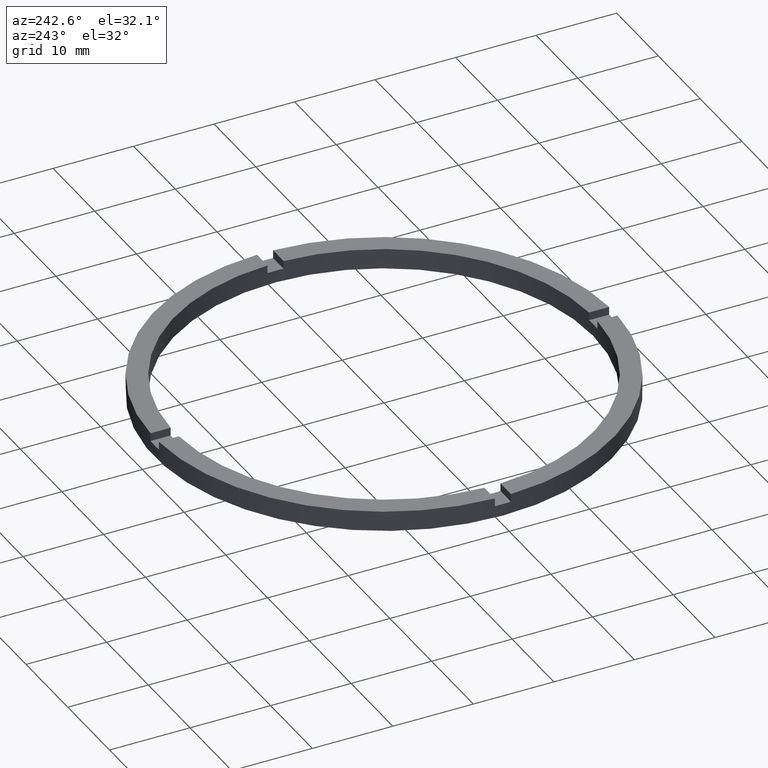
[diagram: clean part render]
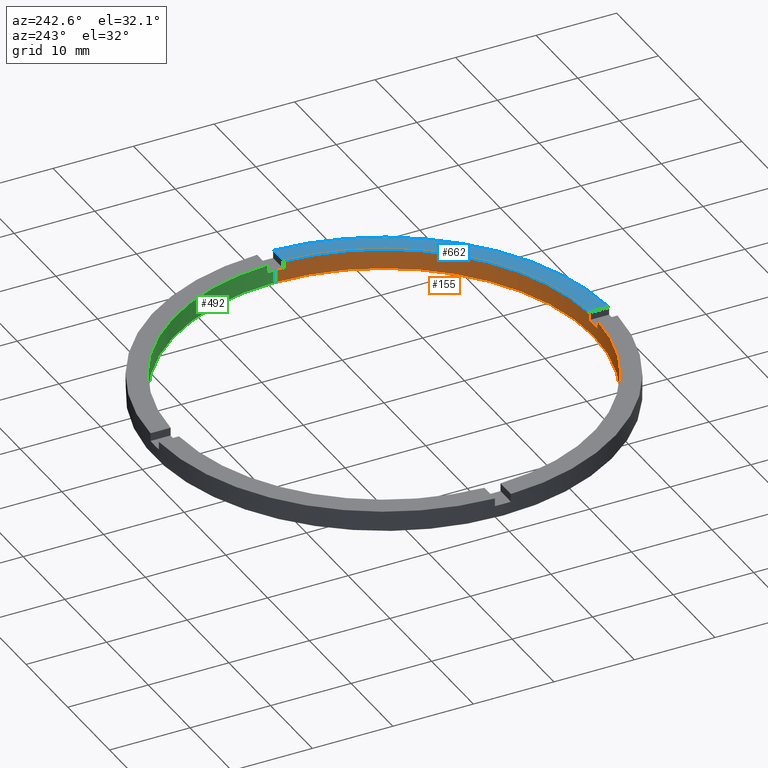
[diagram: same view with three faces highlighted in distinct colors, each labeled with its STEP entity id]
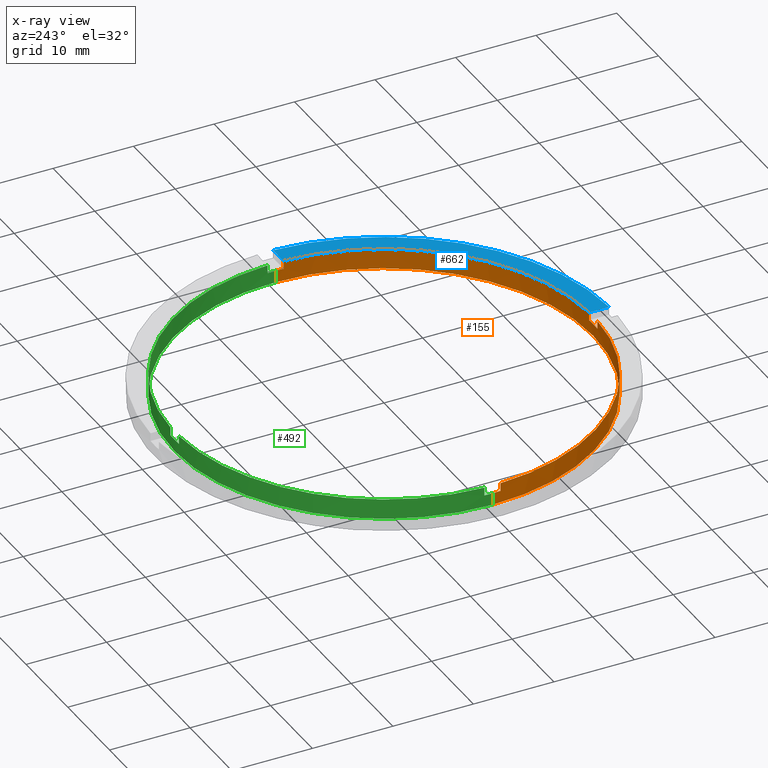
[diagram: x-ray of the same camera — body ghosted, the three highlighted faces saturated]
A machine part, auxiliary view with three faces highlighted in distinct colors.
The next image is the same camera in x-ray (body ghosted, the three faces saturated) — at least one of them is partly hidden behind the body in this view.
Their STEP definitions:

[orange] entity #155 — the highlighted cylindrical surface (partial cylindrical patch) has radius 26 mm, axis along (-0, -0, -1).
#9 = DIRECTION ( 'NONE',  ( 1.000000000000000000, 0.000000000000000000, 0.000000000000000000 ) ) ;
#10 = EDGE_CURVE ( 'NONE', #40, #599, #437, .T. ) ;
#11 = EDGE_CURVE ( 'NONE', #40, #287, #677, .T. ) ;
#28 = DIRECTION ( 'NONE',  ( 0.000000000000000000, 0.000000000000000000, 1.000000000000000000 ) ) ;
#40 = VERTEX_POINT ( 'NONE', #194 ) ;
#46 = AXIS2_PLACEMENT_3D ( 'NONE', #122, #633, #292 ) ;
#55 = VERTEX_POINT ( 'NONE', #260 ) ;
#57 = ORIENTED_EDGE ( 'NONE', *, *, #517, .F. ) ;
#69 = VERTEX_POINT ( 'NONE', #381 ) ;
#90 = CARTESIAN_POINT ( 'NONE',  ( 0.9999999999998402389, -25.98076211353317078, 2.500000000000000000 ) ) ;
#91 = ORIENTED_EDGE ( 'NONE', *, *, #775, .F. ) ;
#92 = EDGE_CURVE ( 'NONE', #592, #303, #180, .T. ) ;
#106 = EDGE_CURVE ( 'NONE', #55, #599, #426, .T. ) ;
#107 = DIRECTION ( 'NONE',  ( 1.000000000000000000, 0.000000000000000000, 0.000000000000000000 ) ) ;
#108 = CARTESIAN_POINT ( 'NONE',  ( -25.98076211353316367, -1.000000000000026645, 1.500000000000000000 ) ) ;
#111 = CARTESIAN_POINT ( 'NONE',  ( 0.000000000000000000, 0.000000000000000000, 1.500000000000000000 ) ) ;
#122 = CARTESIAN_POINT ( 'NONE',  ( 0.000000000000000000, 0.000000000000000000, 2.500000000000000000 ) ) ;
#123 = AXIS2_PLACEMENT_3D ( 'NONE', #378, #697, #550 ) ;
#136 = EDGE_CURVE ( 'NONE', #335, #69, #163, .T. ) ;
#149 = VECTOR ( 'NONE', #417, 1000.000000000000000 ) ;
#150 = CARTESIAN_POINT ( 'NONE',  ( -26.00000000000000355, 0.000000000000000000, 2.500000000000000000 ) ) ;
#155 = ADVANCED_FACE ( 'NONE', ( #703 ), #704, .F. ) ;
#163 = LINE ( 'NONE', #90, #183 ) ;
#173 = DIRECTION ( 'NONE',  ( 0.000000000000000000, 0.000000000000000000, 1.000000000000000000 ) ) ;
#174 = CARTESIAN_POINT ( 'NONE',  ( -1.000000000000159872, -25.98076211353315657, 2.500000000000000000 ) ) ;
#180 = LINE ( 'NONE', #379, #431 ) ;
#183 = VECTOR ( 'NONE', #375, 1000.000000000000000 ) ;
#194 = CARTESIAN_POINT ( 'NONE',  ( -26.00000000000000355, 0.000000000000000000, 1.500000000000000000 ) ) ;
#205 = CIRCLE ( 'NONE', #665, 26.00000000000000355 ) ;
#219 = CIRCLE ( 'NONE', #524, 26.00000000000000355 ) ;
#232 = ORIENTED_EDGE ( 'NONE', *, *, #10, .T. ) ;
#233 = CARTESIAN_POINT ( 'NONE',  ( 0.000000000000000000, 0.000000000000000000, 1.500000000000000000 ) ) ;
#234 = EDGE_CURVE ( 'NONE', #592, #526, #434, .T. ) ;
#236 = ORIENTED_EDGE ( 'NONE', *, *, #136, .F. ) ;
#241 = CARTESIAN_POINT ( 'NONE',  ( 0.000000000000000000, 0.000000000000000000, 0.000000000000000000 ) ) ;
#243 = EDGE_CURVE ( 'NONE', #526, #338, #713, .T. ) ;
#245 = DIRECTION ( 'NONE',  ( -0.000000000000000000, 0.000000000000000000, 1.000000000000000000 ) ) ;
#260 = CARTESIAN_POINT ( 'NONE',  ( -25.98076211353316367, -1.000000000000026645, 2.500000000000000000 ) ) ;
#263 = CARTESIAN_POINT ( 'NONE',  ( -26.00000000000000355, 0.000000000000000000, 0.000000000000000000 ) ) ;
#267 = DIRECTION ( 'NONE',  ( -0.000000000000000000, -0.000000000000000000, -1.000000000000000000 ) ) ;
#269 = DIRECTION ( 'NONE',  ( 1.000000000000000000, 0.000000000000000000, 0.000000000000000000 ) ) ;
#284 = CARTESIAN_POINT ( 'NONE',  ( 0.000000000000000000, 0.000000000000000000, 2.500000000000000000 ) ) ;
#287 = VERTEX_POINT ( 'NONE', #263 ) ;
#292 = DIRECTION ( 'NONE',  ( -1.000000000000000000, 0.000000000000000000, 0.000000000000000000 ) ) ;
#300 = ORIENTED_EDGE ( 'NONE', *, *, #234, .T. ) ;
#303 = VERTEX_POINT ( 'NONE', #447 ) ;
#306 = ORIENTED_EDGE ( 'NONE', *, *, #11, .F. ) ;
#335 = VERTEX_POINT ( 'NONE', #543 ) ;
#338 = VERTEX_POINT ( 'NONE', #520 ) ;
#339 = AXIS2_PLACEMENT_3D ( 'NONE', #284, #173, #586 ) ;
#344 = CARTESIAN_POINT ( 'NONE',  ( 26.00000000000000355, 3.184081677783118585E-15, 2.500000000000000000 ) ) ;
#375 = DIRECTION ( 'NONE',  ( -0.000000000000000000, -0.000000000000000000, -1.000000000000000000 ) ) ;
#378 = CARTESIAN_POINT ( 'NONE',  ( 0.000000000000000000, 0.000000000000000000, 1.500000000000000000 ) ) ;
#379 = CARTESIAN_POINT ( 'NONE',  ( 25.98076211353315657, -1.000000000000156986, 2.500000000000000000 ) ) ;
#381 = CARTESIAN_POINT ( 'NONE',  ( 0.9999999999998402389, -25.98076211353317078, 1.500000000000000000 ) ) ;
#398 = VECTOR ( 'NONE', #267, 1000.000000000000000 ) ;
#401 = LINE ( 'NONE', #174, #149 ) ;
#417 = DIRECTION ( 'NONE',  ( 0.000000000000000000, 0.000000000000000000, 1.000000000000000000 ) ) ;
#422 = EDGE_CURVE ( 'NONE', #55, #632, #727, .T. ) ;
#426 = LINE ( 'NONE', #753, #444 ) ;
#431 = VECTOR ( 'NONE', #513, 1000.000000000000000 ) ;
#434 = CIRCLE ( 'NONE', #123, 26.00000000000000355 ) ;
#437 = CIRCLE ( 'NONE', #453, 26.00000000000000355 ) ;
#444 = VECTOR ( 'NONE', #547, 1000.000000000000000 ) ;
#447 = CARTESIAN_POINT ( 'NONE',  ( 25.98076211353315657, -1.000000000000156986, 2.500000000000000000 ) ) ;
#453 = AXIS2_PLACEMENT_3D ( 'NONE', #233, #28, #107 ) ;
#461 = EDGE_CURVE ( 'NONE', #620, #69, #219, .T. ) ;
#503 = CARTESIAN_POINT ( 'NONE',  ( 26.00000000000000355, 3.184081677783118585E-15, 1.500000000000000000 ) ) ;
#513 = DIRECTION ( 'NONE',  ( 0.000000000000000000, 0.000000000000000000, 1.000000000000000000 ) ) ;
#517 = EDGE_CURVE ( 'NONE', #287, #338, #205, .T. ) ;
#520 = CARTESIAN_POINT ( 'NONE',  ( 26.00000000000000355, 3.184081677783118585E-15, 0.000000000000000000 ) ) ;
#524 = AXIS2_PLACEMENT_3D ( 'NONE', #111, #245, #9 ) ;
#526 = VERTEX_POINT ( 'NONE', #503 ) ;
#533 = CARTESIAN_POINT ( 'NONE',  ( -1.000000000000159872, -25.98076211353315657, 2.500000000000000000 ) ) ;
#543 = CARTESIAN_POINT ( 'NONE',  ( 0.9999999999998402389, -25.98076211353317078, 2.500000000000000000 ) ) ;
#547 = DIRECTION ( 'NONE',  ( -0.000000000000000000, -0.000000000000000000, -1.000000000000000000 ) ) ;
#550 = DIRECTION ( 'NONE',  ( 1.000000000000000000, 0.000000000000000000, 0.000000000000000000 ) ) ;
#567 = DIRECTION ( 'NONE',  ( -0.000000000000000000, -0.000000000000000000, -1.000000000000000000 ) ) ;
#571 = ORIENTED_EDGE ( 'NONE', *, *, #92, .F. ) ;
#577 = ORIENTED_EDGE ( 'NONE', *, *, #106, .F. ) ;
#581 = ORIENTED_EDGE ( 'NONE', *, *, #461, .T. ) ;
#586 = DIRECTION ( 'NONE',  ( 1.000000000000000000, 0.000000000000000000, 0.000000000000000000 ) ) ;
#592 = VERTEX_POINT ( 'NONE', #659 ) ;
#598 = DIRECTION ( 'NONE',  ( 0.000000000000000000, 0.000000000000000000, 1.000000000000000000 ) ) ;
#599 = VERTEX_POINT ( 'NONE', #108 ) ;
#615 = ORIENTED_EDGE ( 'NONE', *, *, #422, .T. ) ;
#620 = VERTEX_POINT ( 'NONE', #724 ) ;
#631 = EDGE_LOOP ( 'NONE', ( #300, #766, #57, #306, #232, #577, #615, #91, #581, #236, #768, #571 ) ) ;
#632 = VERTEX_POINT ( 'NONE', #533 ) ;
#633 = DIRECTION ( 'NONE',  ( -0.000000000000000000, -0.000000000000000000, -1.000000000000000000 ) ) ;
#649 = AXIS2_PLACEMENT_3D ( 'NONE', #783, #598, #269 ) ;
#659 = CARTESIAN_POINT ( 'NONE',  ( 25.98076211353315657, -1.000000000000156986, 1.500000000000000000 ) ) ;
#665 = AXIS2_PLACEMENT_3D ( 'NONE', #241, #730, #737 ) ;
#677 = LINE ( 'NONE', #150, #398 ) ;
#690 = VECTOR ( 'NONE', #567, 1000.000000000000000 ) ;
#697 = DIRECTION ( 'NONE',  ( 0.000000000000000000, 0.000000000000000000, 1.000000000000000000 ) ) ;
#703 = FACE_OUTER_BOUND ( 'NONE', #631, .T. ) ;
#704 = CYLINDRICAL_SURFACE ( 'NONE', #46, 26.00000000000000355 ) ;
#713 = LINE ( 'NONE', #344, #690 ) ;
#722 = EDGE_CURVE ( 'NONE', #335, #303, #733, .T. ) ;
#724 = CARTESIAN_POINT ( 'NONE',  ( -1.000000000000159872, -25.98076211353315657, 1.500000000000000000 ) ) ;
#727 = CIRCLE ( 'NONE', #339, 26.00000000000000355 ) ;
#730 = DIRECTION ( 'NONE',  ( 0.000000000000000000, 0.000000000000000000, 1.000000000000000000 ) ) ;
#733 = CIRCLE ( 'NONE', #649, 26.00000000000000355 ) ;
#737 = DIRECTION ( 'NONE',  ( 1.000000000000000000, 0.000000000000000000, 0.000000000000000000 ) ) ;
#753 = CARTESIAN_POINT ( 'NONE',  ( -25.98076211353316367, -1.000000000000026645, 2.500000000000000000 ) ) ;
#766 = ORIENTED_EDGE ( 'NONE', *, *, #243, .T. ) ;
#768 = ORIENTED_EDGE ( 'NONE', *, *, #722, .T. ) ;
#775 = EDGE_CURVE ( 'NONE', #620, #632, #401, .T. ) ;
#783 = CARTESIAN_POINT ( 'NONE',  ( 0.000000000000000000, 0.000000000000000000, 2.500000000000000000 ) ) ;

[blue] entity #662 — the highlighted planar face has unit normal (0, 0, 1).
#23 = EDGE_CURVE ( 'NONE', #303, #101, #164, .T. ) ;
#42 = ORIENTED_EDGE ( 'NONE', *, *, #722, .F. ) ;
#76 = VERTEX_POINT ( 'NONE', #688 ) ;
#94 = EDGE_LOOP ( 'NONE', ( #603, #42, #227, #319 ) ) ;
#96 = DIRECTION ( 'NONE',  ( 0.000000000000000000, 0.000000000000000000, 1.000000000000000000 ) ) ;
#101 = VERTEX_POINT ( 'NONE', #312 ) ;
#114 = CARTESIAN_POINT ( 'NONE',  ( 0.000000000000000000, 0.000000000000000000, 2.500000000000000000 ) ) ;
#126 = EDGE_CURVE ( 'NONE', #76, #101, #427, .T. ) ;
#130 = CARTESIAN_POINT ( 'NONE',  ( 0.000000000000000000, 0.000000000000000000, 2.500000000000000000 ) ) ;
#154 = PLANE ( 'NONE',  #483 ) ;
#164 = LINE ( 'NONE', #682, #429 ) ;
#168 = DIRECTION ( 'NONE',  ( 1.000000000000000000, 0.000000000000000000, -0.000000000000000000 ) ) ;
#198 = VECTOR ( 'NONE', #238, 1000.000000000000000 ) ;
#208 = DIRECTION ( 'NONE',  ( 0.000000000000000000, 0.000000000000000000, 1.000000000000000000 ) ) ;
#215 = FACE_OUTER_BOUND ( 'NONE', #94, .T. ) ;
#227 = ORIENTED_EDGE ( 'NONE', *, *, #380, .F. ) ;
#238 = DIRECTION ( 'NONE',  ( -1.301042606982605567E-16, 1.000000000000000000, -0.000000000000000000 ) ) ;
#269 = DIRECTION ( 'NONE',  ( 1.000000000000000000, 0.000000000000000000, 0.000000000000000000 ) ) ;
#275 = CARTESIAN_POINT ( 'NONE',  ( 0.9999999999998391287, -18.50000000000018474, 2.500000000000000000 ) ) ;
#303 = VERTEX_POINT ( 'NONE', #447 ) ;
#312 = CARTESIAN_POINT ( 'NONE',  ( 28.48245073725222554, -1.000000000000156763, 2.500000000000000000 ) ) ;
#319 = ORIENTED_EDGE ( 'NONE', *, *, #126, .T. ) ;
#335 = VERTEX_POINT ( 'NONE', #543 ) ;
#380 = EDGE_CURVE ( 'NONE', #76, #335, #460, .T. ) ;
#405 = AXIS2_PLACEMENT_3D ( 'NONE', #130, #208, #435 ) ;
#427 = CIRCLE ( 'NONE', #405, 28.50000000000000000 ) ;
#429 = VECTOR ( 'NONE', #698, 1000.000000000000000 ) ;
#435 = DIRECTION ( 'NONE',  ( 1.000000000000000000, 0.000000000000000000, 0.000000000000000000 ) ) ;
#447 = CARTESIAN_POINT ( 'NONE',  ( 25.98076211353315657, -1.000000000000156986, 2.500000000000000000 ) ) ;
#460 = LINE ( 'NONE', #275, #198 ) ;
#483 = AXIS2_PLACEMENT_3D ( 'NONE', #114, #96, #168 ) ;
#543 = CARTESIAN_POINT ( 'NONE',  ( 0.9999999999998402389, -25.98076211353317078, 2.500000000000000000 ) ) ;
#598 = DIRECTION ( 'NONE',  ( 0.000000000000000000, 0.000000000000000000, 1.000000000000000000 ) ) ;
#603 = ORIENTED_EDGE ( 'NONE', *, *, #23, .F. ) ;
#649 = AXIS2_PLACEMENT_3D ( 'NONE', #783, #598, #269 ) ;
#662 = ADVANCED_FACE ( 'NONE', ( #215 ), #154, .T. ) ;
#682 = CARTESIAN_POINT ( 'NONE',  ( 18.50000000000000000, -1.000000000000157208, 2.500000000000000000 ) ) ;
#688 = CARTESIAN_POINT ( 'NONE',  ( 0.9999999999998404610, -28.48245073725223264, 2.500000000000000000 ) ) ;
#698 = DIRECTION ( 'NONE',  ( 1.000000000000000000, 4.336808689942018352E-17, 0.000000000000000000 ) ) ;
#722 = EDGE_CURVE ( 'NONE', #335, #303, #733, .T. ) ;
#733 = CIRCLE ( 'NONE', #649, 26.00000000000000355 ) ;
#783 = CARTESIAN_POINT ( 'NONE',  ( 0.000000000000000000, 0.000000000000000000, 2.500000000000000000 ) ) ;

[green] entity #492 — the highlighted cylindrical surface (partial cylindrical patch) has radius 26 mm, axis along (-0, -0, -1).
#1 = CARTESIAN_POINT ( 'NONE',  ( -25.98076211353316367, 0.9999999999999733546, 2.500000000000000000 ) ) ;
#5 = EDGE_CURVE ( 'NONE', #285, #237, #140, .T. ) ;
#6 = DIRECTION ( 'NONE',  ( -0.000000000000000000, -0.000000000000000000, -1.000000000000000000 ) ) ;
#11 = EDGE_CURVE ( 'NONE', #40, #287, #677, .T. ) ;
#40 = VERTEX_POINT ( 'NONE', #194 ) ;
#41 = ORIENTED_EDGE ( 'NONE', *, *, #184, .T. ) ;
#48 = AXIS2_PLACEMENT_3D ( 'NONE', #60, #403, #666 ) ;
#54 = ORIENTED_EDGE ( 'NONE', *, *, #5, .T. ) ;
#58 = ORIENTED_EDGE ( 'NONE', *, *, #289, .T. ) ;
#60 = CARTESIAN_POINT ( 'NONE',  ( 0.000000000000000000, 0.000000000000000000, 1.500000000000000000 ) ) ;
#62 = ORIENTED_EDGE ( 'NONE', *, *, #11, .T. ) ;
#63 = ORIENTED_EDGE ( 'NONE', *, *, #712, .F. ) ;
#64 = CARTESIAN_POINT ( 'NONE',  ( 0.000000000000000000, 0.000000000000000000, 2.500000000000000000 ) ) ;
#66 = ORIENTED_EDGE ( 'NONE', *, *, #334, .F. ) ;
#80 = VERTEX_POINT ( 'NONE', #510 ) ;
#93 = VERTEX_POINT ( 'NONE', #551 ) ;
#100 = AXIS2_PLACEMENT_3D ( 'NONE', #64, #512, #443 ) ;
#102 = DIRECTION ( 'NONE',  ( 0.000000000000000000, 0.000000000000000000, 1.000000000000000000 ) ) ;
#104 = CARTESIAN_POINT ( 'NONE',  ( 25.98076211353317078, 0.9999999999998430145, 2.500000000000000000 ) ) ;
#109 = EDGE_CURVE ( 'NONE', #80, #237, #162, .T. ) ;
#140 = CIRCLE ( 'NONE', #374, 26.00000000000000355 ) ;
#145 = EDGE_CURVE ( 'NONE', #590, #343, #706, .T. ) ;
#150 = CARTESIAN_POINT ( 'NONE',  ( -26.00000000000000355, 0.000000000000000000, 2.500000000000000000 ) ) ;
#160 = ORIENTED_EDGE ( 'NONE', *, *, #653, .F. ) ;
#162 = LINE ( 'NONE', #199, #708 ) ;
#169 = VECTOR ( 'NONE', #509, 1000.000000000000000 ) ;
#175 = CIRCLE ( 'NONE', #758, 26.00000000000000355 ) ;
#178 = VECTOR ( 'NONE', #6, 1000.000000000000000 ) ;
#181 = CARTESIAN_POINT ( 'NONE',  ( 0.000000000000000000, 0.000000000000000000, 2.500000000000000000 ) ) ;
#184 = EDGE_CURVE ( 'NONE', #340, #343, #711, .T. ) ;
#193 = DIRECTION ( 'NONE',  ( 0.000000000000000000, 0.000000000000000000, 1.000000000000000000 ) ) ;
#194 = CARTESIAN_POINT ( 'NONE',  ( -26.00000000000000355, 0.000000000000000000, 1.500000000000000000 ) ) ;
#195 = VECTOR ( 'NONE', #489, 1000.000000000000000 ) ;
#199 = CARTESIAN_POINT ( 'NONE',  ( 0.9999999999999735767, 25.98076211353316367, 2.500000000000000000 ) ) ;
#201 = CIRCLE ( 'NONE', #48, 26.00000000000000355 ) ;
#231 = ORIENTED_EDGE ( 'NONE', *, *, #109, .F. ) ;
#237 = VERTEX_POINT ( 'NONE', #639 ) ;
#239 = CARTESIAN_POINT ( 'NONE',  ( 0.000000000000000000, 0.000000000000000000, 0.000000000000000000 ) ) ;
#243 = EDGE_CURVE ( 'NONE', #526, #338, #713, .T. ) ;
#259 = CARTESIAN_POINT ( 'NONE',  ( 25.98076211353317078, 0.9999999999998430145, 2.500000000000000000 ) ) ;
#261 = CARTESIAN_POINT ( 'NONE',  ( -25.98076211353316367, 0.9999999999999733546, 1.500000000000000000 ) ) ;
#263 = CARTESIAN_POINT ( 'NONE',  ( -26.00000000000000355, 0.000000000000000000, 0.000000000000000000 ) ) ;
#267 = DIRECTION ( 'NONE',  ( -0.000000000000000000, -0.000000000000000000, -1.000000000000000000 ) ) ;
#271 = EDGE_CURVE ( 'NONE', #526, #594, #175, .T. ) ;
#285 = VERTEX_POINT ( 'NONE', #259 ) ;
#287 = VERTEX_POINT ( 'NONE', #263 ) ;
#289 = EDGE_CURVE ( 'NONE', #80, #93, #719, .T. ) ;
#328 = DIRECTION ( 'NONE',  ( 0.000000000000000000, -0.000000000000000000, 1.000000000000000000 ) ) ;
#334 = EDGE_CURVE ( 'NONE', #340, #93, #419, .T. ) ;
#338 = VERTEX_POINT ( 'NONE', #520 ) ;
#340 = VERTEX_POINT ( 'NONE', #656 ) ;
#343 = VERTEX_POINT ( 'NONE', #1 ) ;
#344 = CARTESIAN_POINT ( 'NONE',  ( 26.00000000000000355, 3.184081677783118585E-15, 2.500000000000000000 ) ) ;
#350 = ORIENTED_EDGE ( 'NONE', *, *, #145, .F. ) ;
#357 = DIRECTION ( 'NONE',  ( 0.000000000000000000, 0.000000000000000000, 1.000000000000000000 ) ) ;
#372 = DIRECTION ( 'NONE',  ( -0.000000000000000000, -0.000000000000000000, -1.000000000000000000 ) ) ;
#374 = AXIS2_PLACEMENT_3D ( 'NONE', #717, #102, #781 ) ;
#388 = CARTESIAN_POINT ( 'NONE',  ( 25.98076211353317078, 0.9999999999998430145, 1.500000000000000000 ) ) ;
#398 = VECTOR ( 'NONE', #267, 1000.000000000000000 ) ;
#403 = DIRECTION ( 'NONE',  ( 0.000000000000000000, 0.000000000000000000, 1.000000000000000000 ) ) ;
#412 = CARTESIAN_POINT ( 'NONE',  ( -1.000000000000026423, 25.98076211353316367, 2.500000000000000000 ) ) ;
#419 = LINE ( 'NONE', #412, #178 ) ;
#443 = DIRECTION ( 'NONE',  ( 1.000000000000000000, 0.000000000000000000, 0.000000000000000000 ) ) ;
#457 = DIRECTION ( 'NONE',  ( 1.000000000000000000, 0.000000000000000000, 0.000000000000000000 ) ) ;
#470 = CYLINDRICAL_SURFACE ( 'NONE', #498, 26.00000000000000355 ) ;
#477 = EDGE_CURVE ( 'NONE', #590, #40, #201, .T. ) ;
#489 = DIRECTION ( 'NONE',  ( -0.000000000000000000, -0.000000000000000000, -1.000000000000000000 ) ) ;
#490 = ORIENTED_EDGE ( 'NONE', *, *, #477, .T. ) ;
#492 = ADVANCED_FACE ( 'NONE', ( #749 ), #470, .F. ) ;
#498 = AXIS2_PLACEMENT_3D ( 'NONE', #181, #372, #605 ) ;
#499 = ORIENTED_EDGE ( 'NONE', *, *, #271, .T. ) ;
#503 = CARTESIAN_POINT ( 'NONE',  ( 26.00000000000000355, 3.184081677783118585E-15, 1.500000000000000000 ) ) ;
#509 = DIRECTION ( 'NONE',  ( 0.000000000000000000, 0.000000000000000000, 1.000000000000000000 ) ) ;
#510 = CARTESIAN_POINT ( 'NONE',  ( 0.9999999999999735767, 25.98076211353316367, 1.500000000000000000 ) ) ;
#511 = AXIS2_PLACEMENT_3D ( 'NONE', #239, #357, #457 ) ;
#512 = DIRECTION ( 'NONE',  ( 0.000000000000000000, 0.000000000000000000, 1.000000000000000000 ) ) ;
#520 = CARTESIAN_POINT ( 'NONE',  ( 26.00000000000000355, 3.184081677783118585E-15, 0.000000000000000000 ) ) ;
#526 = VERTEX_POINT ( 'NONE', #503 ) ;
#551 = CARTESIAN_POINT ( 'NONE',  ( -1.000000000000026423, 25.98076211353316367, 1.500000000000000000 ) ) ;
#567 = DIRECTION ( 'NONE',  ( -0.000000000000000000, -0.000000000000000000, -1.000000000000000000 ) ) ;
#573 = EDGE_LOOP ( 'NONE', ( #604, #499, #63, #54, #231, #58, #66, #41, #350, #490, #62, #160 ) ) ;
#589 = DIRECTION ( 'NONE',  ( 0.000000000000000000, 0.000000000000000000, 1.000000000000000000 ) ) ;
#590 = VERTEX_POINT ( 'NONE', #261 ) ;
#594 = VERTEX_POINT ( 'NONE', #388 ) ;
#604 = ORIENTED_EDGE ( 'NONE', *, *, #243, .F. ) ;
#605 = DIRECTION ( 'NONE',  ( -1.000000000000000000, 0.000000000000000000, 0.000000000000000000 ) ) ;
#637 = DIRECTION ( 'NONE',  ( 1.000000000000000000, 0.000000000000000000, 0.000000000000000000 ) ) ;
#639 = CARTESIAN_POINT ( 'NONE',  ( 0.9999999999999735767, 25.98076211353316367, 2.500000000000000000 ) ) ;
#648 = CARTESIAN_POINT ( 'NONE',  ( 0.000000000000000000, 0.000000000000000000, 1.500000000000000000 ) ) ;
#652 = DIRECTION ( 'NONE',  ( 1.000000000000000000, 0.000000000000000000, 0.000000000000000000 ) ) ;
#653 = EDGE_CURVE ( 'NONE', #338, #287, #752, .T. ) ;
#655 = CARTESIAN_POINT ( 'NONE',  ( 0.000000000000000000, 0.000000000000000000, 1.500000000000000000 ) ) ;
#656 = CARTESIAN_POINT ( 'NONE',  ( -1.000000000000026423, 25.98076211353316367, 2.500000000000000000 ) ) ;
#666 = DIRECTION ( 'NONE',  ( 1.000000000000000000, 0.000000000000000000, 0.000000000000000000 ) ) ;
#677 = LINE ( 'NONE', #150, #398 ) ;
#681 = CARTESIAN_POINT ( 'NONE',  ( -25.98076211353316367, 0.9999999999999733546, 2.500000000000000000 ) ) ;
#690 = VECTOR ( 'NONE', #567, 1000.000000000000000 ) ;
#706 = LINE ( 'NONE', #681, #169 ) ;
#708 = VECTOR ( 'NONE', #193, 1000.000000000000000 ) ;
#711 = CIRCLE ( 'NONE', #100, 26.00000000000000355 ) ;
#712 = EDGE_CURVE ( 'NONE', #285, #594, #732, .T. ) ;
#713 = LINE ( 'NONE', #344, #690 ) ;
#714 = AXIS2_PLACEMENT_3D ( 'NONE', #648, #328, #637 ) ;
#717 = CARTESIAN_POINT ( 'NONE',  ( 0.000000000000000000, 0.000000000000000000, 2.500000000000000000 ) ) ;
#719 = CIRCLE ( 'NONE', #714, 26.00000000000000355 ) ;
#732 = LINE ( 'NONE', #104, #195 ) ;
#749 = FACE_OUTER_BOUND ( 'NONE', #573, .T. ) ;
#752 = CIRCLE ( 'NONE', #511, 26.00000000000000355 ) ;
#758 = AXIS2_PLACEMENT_3D ( 'NONE', #655, #589, #652 ) ;
#781 = DIRECTION ( 'NONE',  ( 1.000000000000000000, 0.000000000000000000, 0.000000000000000000 ) ) ;